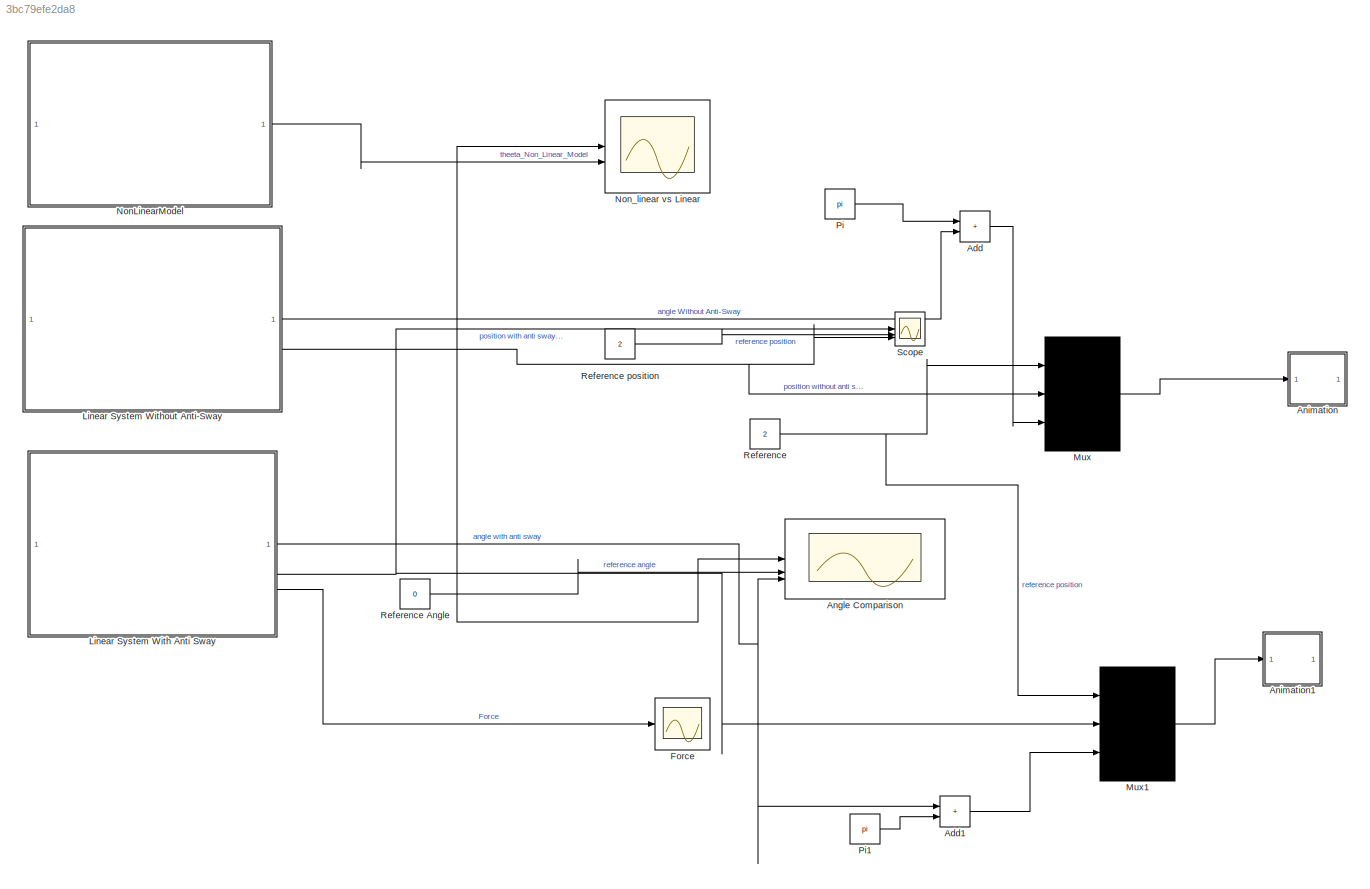
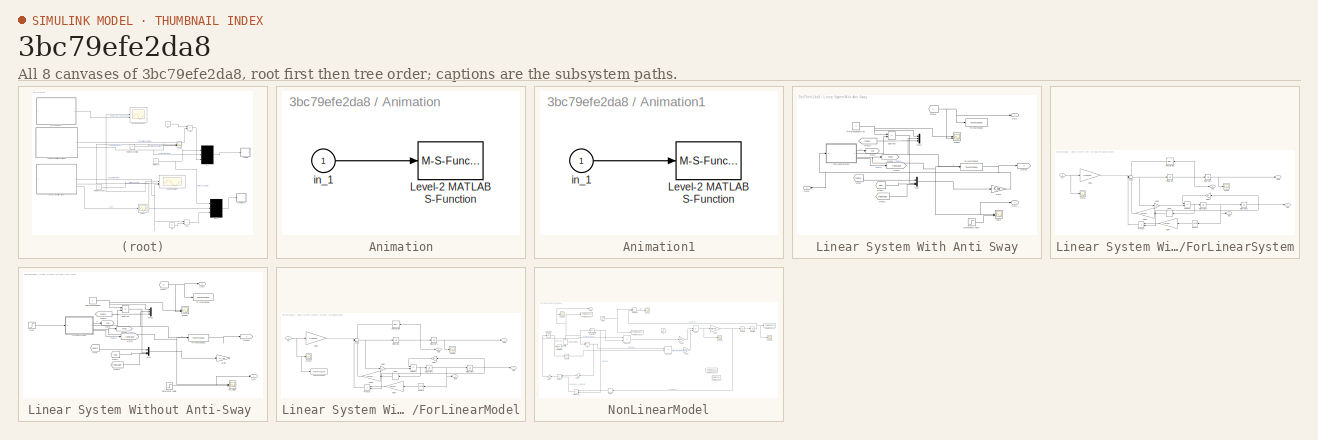
[diagram: thumbnail index - all 8 canvases of the model, root first then tree order]
MODEL slx_3bc79efe2da8
KIND model
CONFIG AbsTol = auto
CONFIG EnableMultiTasking = off
CONFIG FixedStep = auto
CONFIG MaxStep = auto
CONFIG MinStep = auto
CONFIG RelTol = 1e-3
CONFIG SampleTimeConstraint = Unconstrained
CONFIG SolverName = VariableStepAuto
CONFIG StartTime = 0.0
CONFIG StopTime = 30
BLOCK [Sum] Add
  IconShape = rectangular
BLOCK [Sum] Add1
  IconShape = rectangular
BLOCK [Scope] Angle Comparison
  Floating = off
  NumInputPorts = 3
  ScopeSpecificationString = Simulink.scopes.TimeScopeBlockCfg('CurrentConfiguration', extmgr.ConfigurationSet(extmgr.Configuration('Core','General UI',true),extmgr.Configuration('Core','Source UI',true),extmgr.Configuration('Sources','WiredSimulink',true,'DataLoggingVariableName','ScopeData9'),extmgr.Configuration('Visuals','Time Domain',true,'SerializedDisplays',{struct('MinYLimReal','-0.06838','MaxYLimReal','0.04109','YLab...<+1539ch>
BLOCK [SubSystem] Animation
  Commented = on
BLOCK [M-S-Function] Animation/Level-2 MATLAB S-Function
  FunctionName = pendan
  Parameters = RefBlock
BLOCK [Inport] Animation/in_1
BLOCK [SubSystem] Animation1
BLOCK [M-S-Function] Animation1/Level-2 MATLAB S-Function
  FunctionName = pendan
  Parameters = RefBlock
BLOCK [Inport] Animation1/in_1
BLOCK [Scope] Force
  Floating = off
  NumInputPorts = 1
  ScopeSpecificationString = Simulink.scopes.TimeScopeBlockCfg('CurrentConfiguration', extmgr.ConfigurationSet(extmgr.Configuration('Core','General UI',true),extmgr.Configuration('Core','Source UI',true),extmgr.Configuration('Sources','WiredSimulink',true,'DataLoggingVariableName','ScopeData12'),extmgr.Configuration('Visuals','Time Domain',true,'SerializedDisplays',{struct('MinYLimReal','-66.12351','MaxYLimReal','136.37792','...<+1464ch>
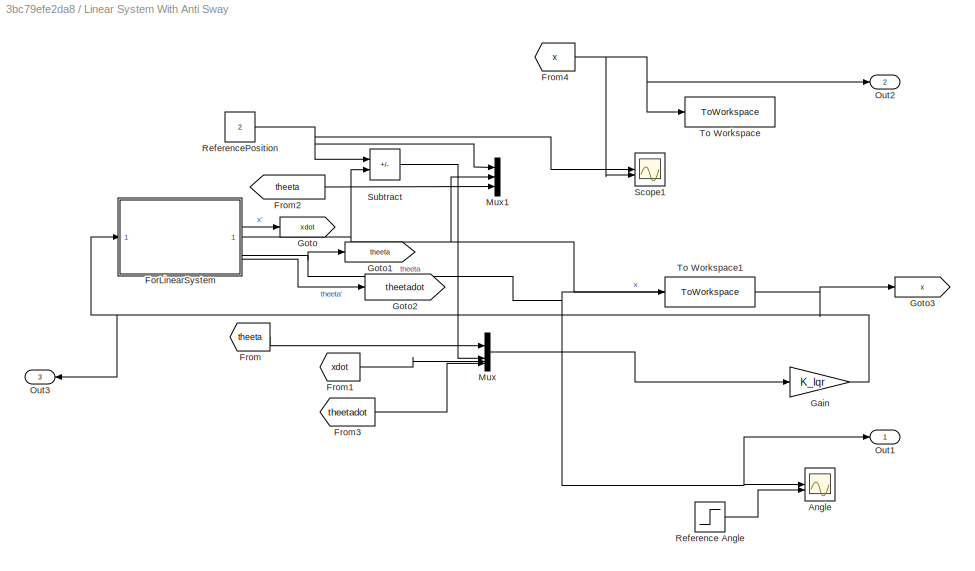
BLOCK [SubSystem] Linear System With Anti Sway
BLOCK [Scope] Linear System With Anti Sway/Angle
  Floating = off
  NumInputPorts = 2
  ScopeSpecificationString = Simulink.scopes.TimeScopeBlockCfg('CurrentConfiguration', extmgr.ConfigurationSet(extmgr.Configuration('Core','General UI',true),extmgr.Configuration('Core','Source UI',true),extmgr.Configuration('Sources','WiredSimulink',true,'DataLoggingVariableName','ScopeData3'),extmgr.Configuration('Visuals','Time Domain',true,'SerializedDisplays',{struct('MinYLimReal','-0.03869','MaxYLimReal','0.02916','YLab...<+1501ch>
BLOCK [SubSystem] Linear System With Anti Sway/ForLinearSystem
BLOCK [Delay] Linear System With Anti Sway/ForLinearSystem/Delay
  InputPortMap = u0
BLOCK [Gain] Linear System With Anti Sway/ForLinearSystem/Gain1
  Gain = 1/combinedmass
BLOCK [Gain] Linear System With Anti Sway/ForLinearSystem/Gain2
  Gain = 1/l
BLOCK [Gain] Linear System With Anti Sway/ForLinearSystem/Gain3
  Gain = g/l
BLOCK [Gain] Linear System With Anti Sway/ForLinearSystem/Gain4
  Gain = (m2*l)/(m1*m2)
BLOCK [Gain] Linear System With Anti Sway/ForLinearSystem/Gain5
  Gain = (m2*l)/(m1*m2)
BLOCK [Inport] Linear System With Anti Sway/ForLinearSystem/In1
BLOCK [Integrator] Linear System With Anti Sway/ForLinearSystem/Integrator
BLOCK [Integrator] Linear System With Anti Sway/ForLinearSystem/Integrator1
BLOCK [Integrator] Linear System With Anti Sway/ForLinearSystem/Integrator2
BLOCK [Integrator] Linear System With Anti Sway/ForLinearSystem/Integrator3
BLOCK [Outport] Linear System With Anti Sway/ForLinearSystem/Out1
BLOCK [Outport] Linear System With Anti Sway/ForLinearSystem/Out2
  Port = 2
BLOCK [Outport] Linear System With Anti Sway/ForLinearSystem/Out3
  Port = 4
BLOCK [Outport] Linear System With Anti Sway/ForLinearSystem/Out4
  Port = 3
BLOCK [Reference] Linear System With Anti Sway/ForLinearSystem/PID Controller  REF=slpidlib/PID Controller
  SourceBlock = slpidlib/PID Controller
  SourceType = PID 1dof
BLOCK [Product] Linear System With Anti Sway/ForLinearSystem/Product
BLOCK [Scope] Linear System With Anti Sway/ForLinearSystem/Scope
  Floating = off
  NumInputPorts = 1
  ScopeSpecificationString = Simulink.scopes.TimeScopeBlockCfg('CurrentConfiguration', extmgr.ConfigurationSet(extmgr.Configuration('Core','General UI',true),extmgr.Configuration('Core','Source UI',true),extmgr.Configuration('Sources','WiredSimulink',true,'DataLoggingVariableName','ScopeData2'),extmgr.Configuration('Visuals','Time Domain',true,'SerializedDisplays',{struct('MinYLimReal','-0.34362','MaxYLimReal','3.09255','YLab...<+1459ch>
BLOCK [Scope] Linear System With Anti Sway/ForLinearSystem/Scope1
  Floating = off
  NumInputPorts = 1
  ScopeSpecificationString = Simulink.scopes.TimeScopeBlockCfg('CurrentConfiguration', extmgr.ConfigurationSet(extmgr.Configuration('Core','General UI',true),extmgr.Configuration('Core','Source UI',true),extmgr.Configuration('Sources','WiredSimulink',true,'DataLoggingVariableName','ScopeData3'),extmgr.Configuration('Visuals','Time Domain',true,'SerializedDisplays',{struct('MinYLimReal','-66.12433','MaxYLimReal','136.37801','Y...<+1461ch>
BLOCK [Math] Linear System With Anti Sway/ForLinearSystem/Square
  Operator = square
BLOCK [Sum] Linear System With Anti Sway/ForLinearSystem/Subtract
  IconShape = rectangular
  Inputs = --
BLOCK [Sum] Linear System With Anti Sway/ForLinearSystem/Sum3
  Inputs = -++-
BLOCK [From] Linear System With Anti Sway/From
  GotoTag = theeta
BLOCK [From] Linear System With Anti Sway/From1
  GotoTag = xdot
BLOCK [From] Linear System With Anti Sway/From2
  GotoTag = theeta
BLOCK [From] Linear System With Anti Sway/From3
  GotoTag = theetadot
BLOCK [From] Linear System With Anti Sway/From4
  GotoTag = x
BLOCK [Gain] Linear System With Anti Sway/Gain
  Gain = K_lqr
  Multiplication = Matrix(K*u)
BLOCK [Goto] Linear System With Anti Sway/Goto
  GotoTag = xdot
BLOCK [Goto] Linear System With Anti Sway/Goto1
  GotoTag = theeta
BLOCK [Goto] Linear System With Anti Sway/Goto2
  GotoTag = theetadot
BLOCK [Goto] Linear System With Anti Sway/Goto3
  GotoTag = x
BLOCK [Mux] Linear System With Anti Sway/Mux
  DisplayOption = bar
BLOCK [Mux] Linear System With Anti Sway/Mux1
  DisplayOption = bar
  Inputs = 3
BLOCK [Outport] Linear System With Anti Sway/Out1
BLOCK [Outport] Linear System With Anti Sway/Out2
  Port = 2
BLOCK [Outport] Linear System With Anti Sway/Out3
  Port = 3
BLOCK [Step] Linear System With Anti Sway/Reference Angle
  After = 0
  SampleTime = 0
BLOCK [Constant] Linear System With Anti Sway/ReferencePosition
  Value = 2
BLOCK [Scope] Linear System With Anti Sway/Scope1
  Floating = off
  NumInputPorts = 2
  ScopeSpecificationString = Simulink.scopes.TimeScopeBlockCfg('CurrentConfiguration', extmgr.ConfigurationSet(extmgr.Configuration('Core','General UI',true),extmgr.Configuration('Core','Source UI',true),extmgr.Configuration('Sources','WiredSimulink',true,'DataLoggingVariableName','ScopeData4'),extmgr.Configuration('Visuals','Time Domain',true,'SerializedDisplays',{struct('MinYLimReal','-0.34343','MaxYLimReal','3.09084','YLab...<+1471ch>
BLOCK [Sum] Linear System With Anti Sway/Subtract
  IconShape = rectangular
  Inputs = +-
BLOCK [ToWorkspace] Linear System With Anti Sway/To Workspace
  FixptAsFi = on
  MaxDataPoints = inf
  SampleTime = -1
  SaveFormat = Timeseries
  VariableName = pos1
BLOCK [ToWorkspace] Linear System With Anti Sway/To Workspace1
  FixptAsFi = on
  MaxDataPoints = inf
  SampleTime = -1
  SaveFormat = Timeseries
  VariableName = angle1
BLOCK [SubSystem] Linear System Without Anti-Sway 
BLOCK [SubSystem] Linear System Without Anti-Sway /ForLinearModel
BLOCK [Delay] Linear System Without Anti-Sway /ForLinearModel/Delay
  InputPortMap = u0
BLOCK [Gain] Linear System Without Anti-Sway /ForLinearModel/Gain1
  Gain = 1/combinedmass
BLOCK [Gain] Linear System Without Anti-Sway /ForLinearModel/Gain2
  Gain = 1/l
BLOCK [Gain] Linear System Without Anti-Sway /ForLinearModel/Gain3
  Gain = g/l
BLOCK [Gain] Linear System Without Anti-Sway /ForLinearModel/Gain4
  Gain = (m2*l)/(m1*m2)
BLOCK [Gain] Linear System Without Anti-Sway /ForLinearModel/Gain5
  Gain = (m2*l)/(m1*m2)
BLOCK [Inport] Linear System Without Anti-Sway /ForLinearModel/In1
BLOCK [Integrator] Linear System Without Anti-Sway /ForLinearModel/Integrator
BLOCK [Integrator] Linear System Without Anti-Sway /ForLinearModel/Integrator1
BLOCK [Integrator] Linear System Without Anti-Sway /ForLinearModel/Integrator2
BLOCK [Integrator] Linear System Without Anti-Sway /ForLinearModel/Integrator3
BLOCK [Outport] Linear System Without Anti-Sway /ForLinearModel/Out1
BLOCK [Outport] Linear System Without Anti-Sway /ForLinearModel/Out2
  Port = 2
BLOCK [Outport] Linear System Without Anti-Sway /ForLinearModel/Out3
  Port = 4
BLOCK [Outport] Linear System Without Anti-Sway /ForLinearModel/Out4
  Port = 3
BLOCK [Reference] Linear System Without Anti-Sway /ForLinearModel/PID Controller  REF=slpidlib/PID Controller
  SourceBlock = slpidlib/PID Controller
  SourceType = PID 1dof
BLOCK [Product] Linear System Without Anti-Sway /ForLinearModel/Product
BLOCK [Scope] Linear System Without Anti-Sway /ForLinearModel/Scope
  Floating = off
  NumInputPorts = 1
  ScopeSpecificationString = Simulink.scopes.TimeScopeBlockCfg('CurrentConfiguration', extmgr.ConfigurationSet(extmgr.Configuration('Core','General UI',true),extmgr.Configuration('Core','Source UI',true),extmgr.Configuration('Sources','WiredSimulink',true,'DataLoggingVariableName','ScopeData2'),extmgr.Configuration('Visuals','Time Domain',true,'SerializedDisplays',{struct('MinYLimReal','-0.34362','MaxYLimReal','3.09255','YLab...<+1459ch>
BLOCK [Scope] Linear System Without Anti-Sway /ForLinearModel/Scope1
  Floating = off
  NumInputPorts = 1
  ScopeSpecificationString = Simulink.scopes.TimeScopeBlockCfg('CurrentConfiguration', extmgr.ConfigurationSet(extmgr.Configuration('Core','General UI',true),extmgr.Configuration('Core','Source UI',true),extmgr.Configuration('Sources','WiredSimulink',true,'DataLoggingVariableName','ScopeData3'),extmgr.Configuration('Visuals','Time Domain',true,'SerializedDisplays',{struct('MinYLimReal','90.00000','MaxYLimReal','110.00000','YL...<+1461ch>
BLOCK [Math] Linear System Without Anti-Sway /ForLinearModel/Square
  Operator = square
BLOCK [Sum] Linear System Without Anti-Sway /ForLinearModel/Subtract
  IconShape = rectangular
  Inputs = --
BLOCK [Sum] Linear System Without Anti-Sway /ForLinearModel/Sum3
  Inputs = -++-
BLOCK [ToWorkspace] Linear System Without Anti-Sway /ForLinearModel/To Workspace
  FixptAsFi = on
  MaxDataPoints = inf
  SampleTime = -1
  SaveFormat = Timeseries
  VariableName = F
BLOCK [From] Linear System Without Anti-Sway /From
  GotoTag = theeta
BLOCK [From] Linear System Without Anti-Sway /From1
  GotoTag = xdot
BLOCK [From] Linear System Without Anti-Sway /From2
  GotoTag = theeta
BLOCK [From] Linear System Without Anti-Sway /From3
  GotoTag = theetadot
BLOCK [From] Linear System Without Anti-Sway /From4
  GotoTag = x
BLOCK [Gain] Linear System Without Anti-Sway /Gain
  Gain = K_lqr
  Multiplication = Matrix(K*u)
BLOCK [Goto] Linear System Without Anti-Sway /Goto
  GotoTag = xdot
BLOCK [Goto] Linear System Without Anti-Sway /Goto1
  GotoTag = theeta
BLOCK [Goto] Linear System Without Anti-Sway /Goto2
  GotoTag = theetadot
BLOCK [Goto] Linear System Without Anti-Sway /Goto3
  GotoTag = x
BLOCK [Scope] Linear System Without Anti-Sway /Lin_Angle
  Floating = off
  NumInputPorts = 2
  ScopeSpecificationString = Simulink.scopes.TimeScopeBlockCfg('CurrentConfiguration', extmgr.ConfigurationSet(extmgr.Configuration('Core','General UI',true),extmgr.Configuration('Core','Source UI',true),extmgr.Configuration('Sources','WiredSimulink',true,'DataLoggingVariableName','ScopeData1'),extmgr.Configuration('Visuals','Time Domain',true,'SerializedDisplays',{struct('MinYLimReal','-0.0342','MaxYLimReal','0.02055','YLabe...<+1497ch>
BLOCK [Mux] Linear System Without Anti-Sway /Mux
  DisplayOption = bar
BLOCK [Mux] Linear System Without Anti-Sway /Mux1
  DisplayOption = bar
  Inputs = 3
BLOCK [Outport] Linear System Without Anti-Sway /Out1
BLOCK [Outport] Linear System Without Anti-Sway /Out2
  Port = 2
BLOCK [Step] Linear System Without Anti-Sway /Reference Angle
  After = 0
  SampleTime = 0
BLOCK [Constant] Linear System Without Anti-Sway /ReferencePosition
  Value = 2
BLOCK [Scope] Linear System Without Anti-Sway /Scope1
  Floating = off
  NumInputPorts = 2
  ScopeSpecificationString = Simulink.scopes.TimeScopeBlockCfg('CurrentConfiguration', extmgr.ConfigurationSet(extmgr.Configuration('Core','General UI',true),extmgr.Configuration('Core','Source UI',true),extmgr.Configuration('Sources','WiredSimulink',true,'DataLoggingVariableName','ScopeData2'),extmgr.Configuration('Visuals','Time Domain',true,'SerializedDisplays',{struct('MinYLimReal','-5.63562','MaxYLimReal','50.72057','YLa...<+1475ch>
BLOCK [Step] Linear System Without Anti-Sway /Step
  After = 200
  SampleTime = 0
  Time = 0
BLOCK [Sum] Linear System Without Anti-Sway /Subtract
  IconShape = rectangular
  Inputs = +-
BLOCK [ToWorkspace] Linear System Without Anti-Sway /To Workspace
  FixptAsFi = on
  MaxDataPoints = inf
  SampleTime = -1
  SaveFormat = Timeseries
  VariableName = pos
BLOCK [ToWorkspace] Linear System Without Anti-Sway /To Workspace1
  FixptAsFi = on
  MaxDataPoints = inf
  SampleTime = -1
  SaveFormat = Timeseries
  VariableName = angle
BLOCK [Mux] Mux
  DisplayOption = bar
  Inputs = 3
BLOCK [Mux] Mux1
  DisplayOption = bar
  Inputs = 3
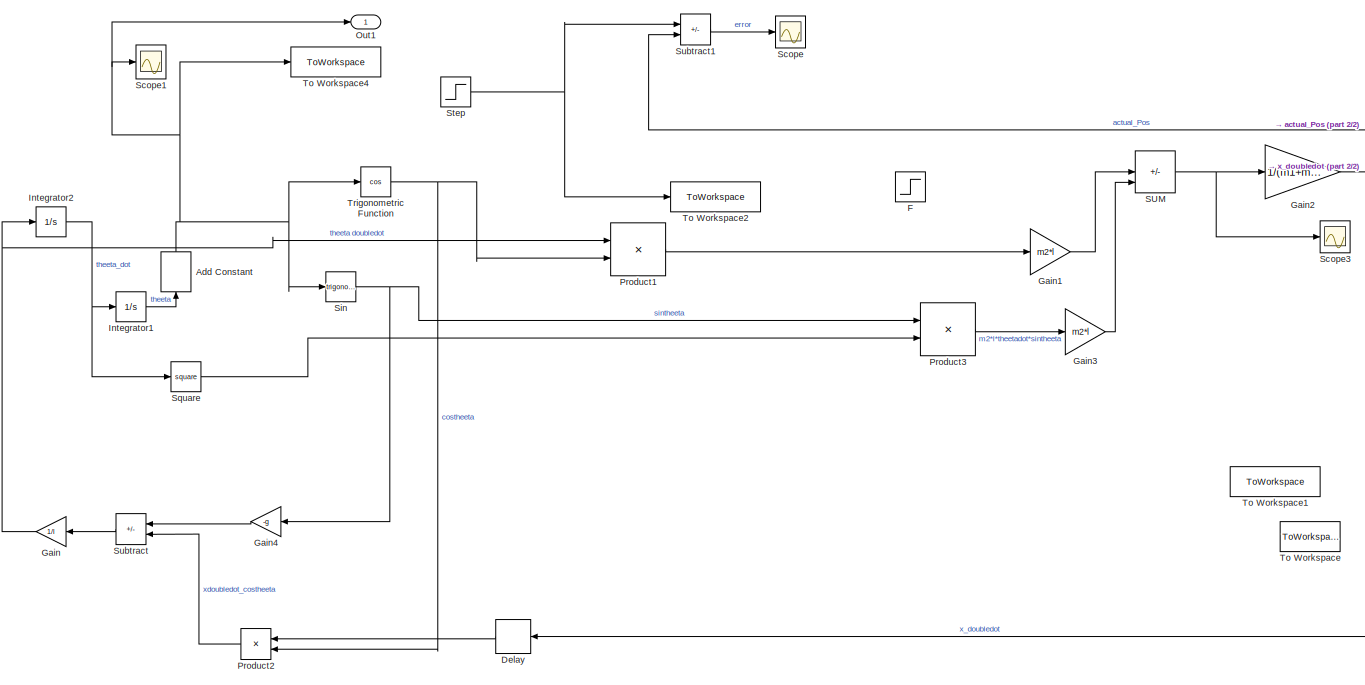
[diagram: NonLinearModel - part 1/2, most of the canvas]
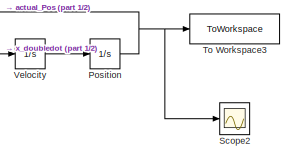
[diagram: NonLinearModel - part 2/2, top right region]
BLOCK [SubSystem] NonLinearModel
BLOCK [Bias] NonLinearModel/Add Constant
  NameLocation = right
  SaturateOnIntegerOverflow = off
BLOCK [Delay] NonLinearModel/Delay
  DelayLength = 1
  InputPortMap = u0
BLOCK [Step] NonLinearModel/F
  After = 200
  SampleTime = 0
  Time = 0
BLOCK [Gain] NonLinearModel/Gain
  Gain = 1/l
BLOCK [Gain] NonLinearModel/Gain1
  Gain = m2*l
BLOCK [Gain] NonLinearModel/Gain2
  Gain = 1/(m1+m2)
BLOCK [Gain] NonLinearModel/Gain3
  Gain = m2*l
BLOCK [Gain] NonLinearModel/Gain4
  Gain = -g
BLOCK [Integrator] NonLinearModel/Integrator1
BLOCK [Integrator] NonLinearModel/Integrator2
BLOCK [Outport] NonLinearModel/Out1
BLOCK [Integrator] NonLinearModel/Position
BLOCK [Product] NonLinearModel/Product1
BLOCK [Product] NonLinearModel/Product2
BLOCK [Product] NonLinearModel/Product3
BLOCK [Sum] NonLinearModel/SUM
  IconShape = rectangular
  Inputs = +-+
BLOCK [Scope] NonLinearModel/Scope
  Floating = off
  NumInputPorts = 1
  ScopeSpecificationString = Simulink.scopes.TimeScopeBlockCfg('CurrentConfiguration', extmgr.ConfigurationSet(extmgr.Configuration('Core','General UI',true),extmgr.Configuration('Core','Source UI',true),extmgr.Configuration('Sources','WiredSimulink',true,'DataLoggingVariableName','ScopeData5'),extmgr.Configuration('Visuals','Time Domain',true,'SerializedDisplays',{struct('MinYLimReal','-17.07595','MaxYLimReal','3.00844','YLa...<+1486ch>
BLOCK [Scope] NonLinearModel/Scope1
  Floating = off
  NumInputPorts = 1
  ScopeSpecificationString = Simulink.scopes.TimeScopeBlockCfg('CurrentConfiguration', extmgr.ConfigurationSet(extmgr.Configuration('Core','General UI',true),extmgr.Configuration('Core','Source UI',true),extmgr.Configuration('Sources','WiredSimulink',true,'DataLoggingVariableName','ScopeData6'),extmgr.Configuration('Visuals','Time Domain',true,'SerializedDisplays',{struct('MinYLimReal','-1.00000','MaxYLimReal','1.00000','YLab...<+1489ch>
BLOCK [Scope] NonLinearModel/Scope2
  Floating = off
  NumInputPorts = 1
  ScopeSpecificationString = Simulink.scopes.TimeScopeBlockCfg('CurrentConfiguration', extmgr.ConfigurationSet(extmgr.Configuration('Core','General UI',true),extmgr.Configuration('Core','Source UI',true),extmgr.Configuration('Sources','WiredSimulink',true,'DataLoggingVariableName','ScopeData7'),extmgr.Configuration('Visuals','Time Domain',true,'SerializedDisplays',{struct('MinYLimReal','-0.55688','MaxYLimReal','5.01192','YLab...<+1458ch>
BLOCK [Scope] NonLinearModel/Scope3
  Floating = off
  NumInputPorts = 1
  ScopeSpecificationString = Simulink.scopes.TimeScopeBlockCfg('CurrentConfiguration', extmgr.ConfigurationSet(extmgr.Configuration('Core','General UI',true),extmgr.Configuration('Core','Source UI',true),extmgr.Configuration('Sources','WiredSimulink',true,'DataLoggingVariableName','ScopeData8'),extmgr.Configuration('Visuals','Time Domain',true,'SerializedDisplays',{struct('MinYLimReal','-0.1525','MaxYLimReal','1.3725','YLabel...<+1474ch>
BLOCK [Trigonometry] NonLinearModel/Sin
BLOCK [Math] NonLinearModel/Square
  Operator = square
BLOCK [Step] NonLinearModel/Step
  After = 2
  SampleTime = 0
BLOCK [Sum] NonLinearModel/Subtract
  IconShape = rectangular
  Inputs = +-
BLOCK [Sum] NonLinearModel/Subtract1
  IconShape = rectangular
  Inputs = +-
BLOCK [ToWorkspace] NonLinearModel/To Workspace
  FixptAsFi = on
  MaxDataPoints = inf
  SampleTime = -1
  SaveFormat = Timeseries
  VariableName = position
BLOCK [ToWorkspace] NonLinearModel/To Workspace1
  FixptAsFi = on
  MaxDataPoints = inf
  SampleTime = -1
  SaveFormat = Timeseries
  VariableName = simout
BLOCK [ToWorkspace] NonLinearModel/To Workspace2
  FixptAsFi = on
  MaxDataPoints = inf
  SampleTime = -1
  SaveFormat = Timeseries
  VariableName = pos_ref
BLOCK [ToWorkspace] NonLinearModel/To Workspace3
  FixptAsFi = on
  MaxDataPoints = inf
  SampleTime = -1
  SaveFormat = Timeseries
  VariableName = pos2
BLOCK [ToWorkspace] NonLinearModel/To Workspace4
  FixptAsFi = on
  MaxDataPoints = inf
  SampleTime = -1
  SaveFormat = Timeseries
  VariableName = simout1
BLOCK [Trigonometry] NonLinearModel/Trigonometric Function
  Operator = cos
BLOCK [Integrator] NonLinearModel/Velocity
BLOCK [Scope] Non_linear vs Linear
  Floating = off
  NumInputPorts = 2
  ScopeSpecificationString = Simulink.scopes.TimeScopeBlockCfg('CurrentConfiguration', extmgr.ConfigurationSet(extmgr.Configuration('Core','General UI',true),extmgr.Configuration('Core','Source UI',true),extmgr.Configuration('Sources','WiredSimulink',true,'DataLoggingVariableName','ScopeData11'),extmgr.Configuration('Visuals','Time Domain',true,'SerializedDisplays',{struct('MinYLimReal','-0.06838','MaxYLimReal','0.04109','YLa...<+1498ch>
BLOCK [Constant] Pi
  OutDataTypeStr = Inherit: Inherit via back propagation
  Value = pi
BLOCK [Constant] Pi1
  OutDataTypeStr = Inherit: Inherit via back propagation
  Value = pi
BLOCK [Constant] Reference
  Value = 2
BLOCK [Constant] Reference Angle
  Value = 0
BLOCK [Constant] Reference position 
  Value = 2
BLOCK [Scope] Scope
  Floating = off
  NumInputPorts = 3
  ScopeSpecificationString = Simulink.scopes.TimeScopeBlockCfg('CurrentConfiguration', extmgr.ConfigurationSet(extmgr.Configuration('Core','General UI',true),extmgr.Configuration('Core','Source UI',true),extmgr.Configuration('Sources','WiredSimulink',true,'DataLoggingVariableName','ScopeData10'),extmgr.Configuration('Visuals','Time Domain',true,'SerializedDisplays',{struct('MinYLimReal','-11.27124','MaxYLimReal','101.44112','...<+1577ch>
LINE Add1:1 -> Mux1:3
LINE Add:1 -> Mux:3
LINE Animation/in_1:1 -> Animation/Level-2 MATLAB S-Function:1
LINE Animation1/in_1:1 -> Animation1/Level-2 MATLAB S-Function:1
LINE Linear System With Anti Sway/ForLinearSystem/Delay:1 -> Linear System With Anti Sway/ForLinearSystem/Gain5:1
LINE Linear System With Anti Sway/ForLinearSystem/Gain1:1 -> Linear System With Anti Sway/ForLinearSystem/Sum3:2
LINE Linear System With Anti Sway/ForLinearSystem/Gain2:1 -> Linear System With Anti Sway/ForLinearSystem/Subtract:2
LINE Linear System With Anti Sway/ForLinearSystem/Gain3:1 -> Linear System With Anti Sway/ForLinearSystem/Subtract:1
LINE Linear System With Anti Sway/ForLinearSystem/Gain4:1 -> Linear System With Anti Sway/ForLinearSystem/Product:1
LINE Linear System With Anti Sway/ForLinearSystem/Gain5:1 -> Linear System With Anti Sway/ForLinearSystem/Sum3:4
NET Linear System With Anti Sway/ForLinearSystem/In1:1 -> Linear System With Anti Sway/ForLinearSystem/Gain1:1, Linear System With Anti Sway/ForLinearSystem/Scope1:1
NET Linear System With Anti Sway/ForLinearSystem/Integrator1:1 -> Linear System With Anti Sway/ForLinearSystem/Out1:1, Linear System With Anti Sway/ForLinearSystem/Scope:1
NET Linear System With Anti Sway/ForLinearSystem/Integrator2:1 -> Linear System With Anti Sway/ForLinearSystem/Integrator3:1, Linear System With Anti Sway/ForLinearSystem/Out3:1, Linear System With Anti Sway/ForLinearSystem/Square:1
NET Linear System With Anti Sway/ForLinearSystem/Integrator3:1 -> Linear System With Anti Sway/ForLinearSystem/Gain3:1, Linear System With Anti Sway/ForLinearSystem/Out4:1, Linear System With Anti Sway/ForLinearSystem/Product:2
NET Linear System With Anti Sway/ForLinearSystem/Integrator:1 -> Linear System With Anti Sway/ForLinearSystem/Integrator1:1, Linear System With Anti Sway/ForLinearSystem/Out2:1, Linear System With Anti Sway/ForLinearSystem/PID Controller:1
LINE Linear System With Anti Sway/ForLinearSystem/PID Controller:1 -> Linear System With Anti Sway/ForLinearSystem/Sum3:1
LINE Linear System With Anti Sway/ForLinearSystem/Product:1 -> Linear System With Anti Sway/ForLinearSystem/Sum3:3
LINE Linear System With Anti Sway/ForLinearSystem/Square:1 -> Linear System With Anti Sway/ForLinearSystem/Gain4:1
NET Linear System With Anti Sway/ForLinearSystem/Subtract:1 -> Linear System With Anti Sway/ForLinearSystem/Delay:1, Linear System With Anti Sway/ForLinearSystem/Integrator2:1
NET Linear System With Anti Sway/ForLinearSystem/Sum3:1 -> Linear System With Anti Sway/ForLinearSystem/Gain2:1, Linear System With Anti Sway/ForLinearSystem/Integrator:1
NET Linear System With Anti Sway/ForLinearSystem:1 -> Linear System With Anti Sway/Goto3:1, Linear System With Anti Sway/Mux1:2, Linear System With Anti Sway/Subtract:2
LINE Linear System With Anti Sway/ForLinearSystem:2 -> Linear System With Anti Sway/Goto:1
NET Linear System With Anti Sway/ForLinearSystem:3 -> Linear System With Anti Sway/Angle:1, Linear System With Anti Sway/Goto1:1, Linear System With Anti Sway/Out1:1, Linear System With Anti Sway/To Workspace1:1
LINE Linear System With Anti Sway/ForLinearSystem:4 -> Linear System With Anti Sway/Goto2:1
LINE Linear System With Anti Sway/From1:1 -> Linear System With Anti Sway/Mux:3
LINE Linear System With Anti Sway/From2:1 -> Linear System With Anti Sway/Mux1:3
LINE Linear System With Anti Sway/From3:1 -> Linear System With Anti Sway/Mux:4
NET Linear System With Anti Sway/From4:1 -> Linear System With Anti Sway/Out2:1, Linear System With Anti Sway/Scope1:2, Linear System With Anti Sway/To Workspace:1
LINE Linear System With Anti Sway/From:1 -> Linear System With Anti Sway/Mux:1
NET Linear System With Anti Sway/Gain:1 -> Linear System With Anti Sway/ForLinearSystem:1, Linear System With Anti Sway/Out3:1
LINE Linear System With Anti Sway/Mux:1 -> Linear System With Anti Sway/Gain:1
LINE Linear System With Anti Sway/Reference Angle:1 -> Linear System With Anti Sway/Angle:2
NET Linear System With Anti Sway/ReferencePosition:1 -> Linear System With Anti Sway/Mux1:1, Linear System With Anti Sway/Scope1:1, Linear System With Anti Sway/Subtract:1
LINE Linear System With Anti Sway/Subtract:1 -> Linear System With Anti Sway/Mux:2
NET Linear System With Anti Sway:1 -> Add1:1, Angle Comparison:3
NET Linear System With Anti Sway:2 -> Mux1:2, Scope:1
LINE Linear System With Anti Sway:3 -> Force:1
LINE Linear System Without Anti-Sway /ForLinearModel/Delay:1 -> Linear System Without Anti-Sway /ForLinearModel/Gain5:1
LINE Linear System Without Anti-Sway /ForLinearModel/Gain1:1 -> Linear System Without Anti-Sway /ForLinearModel/Sum3:2
LINE Linear System Without Anti-Sway /ForLinearModel/Gain2:1 -> Linear System Without Anti-Sway /ForLinearModel/Subtract:2
LINE Linear System Without Anti-Sway /ForLinearModel/Gain3:1 -> Linear System Without Anti-Sway /ForLinearModel/Subtract:1
LINE Linear System Without Anti-Sway /ForLinearModel/Gain4:1 -> Linear System Without Anti-Sway /ForLinearModel/Product:1
LINE Linear System Without Anti-Sway /ForLinearModel/Gain5:1 -> Linear System Without Anti-Sway /ForLinearModel/Sum3:4
NET Linear System Without Anti-Sway /ForLinearModel/In1:1 -> Linear System Without Anti-Sway /ForLinearModel/Gain1:1, Linear System Without Anti-Sway /ForLinearModel/Scope1:1, Linear System Without Anti-Sway /ForLinearModel/To Workspace:1
NET Linear System Without Anti-Sway /ForLinearModel/Integrator1:1 -> Linear System Without Anti-Sway /ForLinearModel/Out1:1, Linear System Without Anti-Sway /ForLinearModel/Scope:1
NET Linear System Without Anti-Sway /ForLinearModel/Integrator2:1 -> Linear System Without Anti-Sway /ForLinearModel/Integrator3:1, Linear System Without Anti-Sway /ForLinearModel/Out3:1, Linear System Without Anti-Sway /ForLinearModel/Square:1
NET Linear System Without Anti-Sway /ForLinearModel/Integrator3:1 -> Linear System Without Anti-Sway /ForLinearModel/Gain3:1, Linear System Without Anti-Sway /ForLinearModel/Out4:1, Linear System Without Anti-Sway /ForLinearModel/Product:2
NET Linear System Without Anti-Sway /ForLinearModel/Integrator:1 -> Linear System Without Anti-Sway /ForLinearModel/Integrator1:1, Linear System Without Anti-Sway /ForLinearModel/Out2:1, Linear System Without Anti-Sway /ForLinearModel/PID Controller:1
LINE Linear System Without Anti-Sway /ForLinearModel/PID Controller:1 -> Linear System Without Anti-Sway /ForLinearModel/Sum3:1
LINE Linear System Without Anti-Sway /ForLinearModel/Product:1 -> Linear System Without Anti-Sway /ForLinearModel/Sum3:3
LINE Linear System Without Anti-Sway /ForLinearModel/Square:1 -> Linear System Without Anti-Sway /ForLinearModel/Gain4:1
NET Linear System Without Anti-Sway /ForLinearModel/Subtract:1 -> Linear System Without Anti-Sway /ForLinearModel/Delay:1, Linear System Without Anti-Sway /ForLinearModel/Integrator2:1
NET Linear System Without Anti-Sway /ForLinearModel/Sum3:1 -> Linear System Without Anti-Sway /ForLinearModel/Gain2:1, Linear System Without Anti-Sway /ForLinearModel/Integrator:1
NET Linear System Without Anti-Sway /ForLinearModel:1 -> Linear System Without Anti-Sway /Goto3:1, Linear System Without Anti-Sway /Mux1:2, Linear System Without Anti-Sway /Subtract:2
LINE Linear System Without Anti-Sway /ForLinearModel:2 -> Linear System Without Anti-Sway /Goto:1
NET Linear System Without Anti-Sway /ForLinearModel:3 -> Linear System Without Anti-Sway /Goto1:1, Linear System Without Anti-Sway /Lin_Angle:1, Linear System Without Anti-Sway /Out1:1, Linear System Without Anti-Sway /To Workspace1:1
LINE Linear System Without Anti-Sway /ForLinearModel:4 -> Linear System Without Anti-Sway /Goto2:1
LINE Linear System Without Anti-Sway /From1:1 -> Linear System Without Anti-Sway /Mux:3
LINE Linear System Without Anti-Sway /From2:1 -> Linear System Without Anti-Sway /Mux1:3
LINE Linear System Without Anti-Sway /From3:1 -> Linear System Without Anti-Sway /Mux:4
NET Linear System Without Anti-Sway /From4:1 -> Linear System Without Anti-Sway /Out2:1, Linear System Without Anti-Sway /Scope1:2, Linear System Without Anti-Sway /To Workspace:1
LINE Linear System Without Anti-Sway /From:1 -> Linear System Without Anti-Sway /Mux:1
LINE Linear System Without Anti-Sway /Mux:1 -> Linear System Without Anti-Sway /Gain:1
LINE Linear System Without Anti-Sway /Reference Angle:1 -> Linear System Without Anti-Sway /Lin_Angle:2
NET Linear System Without Anti-Sway /ReferencePosition:1 -> Linear System Without Anti-Sway /Mux1:1, Linear System Without Anti-Sway /Scope1:1, Linear System Without Anti-Sway /Subtract:1
LINE Linear System Without Anti-Sway /Step:1 -> Linear System Without Anti-Sway /ForLinearModel:1
LINE Linear System Without Anti-Sway /Subtract:1 -> Linear System Without Anti-Sway /Mux:2
NET Linear System Without Anti-Sway :1 -> Add:2, Angle Comparison:1, Non_linear vs Linear:1
NET Linear System Without Anti-Sway :2 -> Mux:2, Scope:3
LINE Mux1:1 -> Animation1:1
LINE Mux:1 -> Animation:1
NET NonLinearModel/Add Constant:1 -> NonLinearModel/Out1:1, NonLinearModel/Scope1:1, NonLinearModel/Sin:1, NonLinearModel/To Workspace4:1, NonLinearModel/Trigonometric Function:1
LINE NonLinearModel/Delay:1 -> NonLinearModel/Product2:1
LINE NonLinearModel/Gain1:1 -> NonLinearModel/SUM:2
NET NonLinearModel/Gain2:1 -> NonLinearModel/Delay:1, NonLinearModel/Velocity:1
LINE NonLinearModel/Gain3:1 -> NonLinearModel/SUM:3
LINE NonLinearModel/Gain4:1 -> NonLinearModel/Subtract:1
NET NonLinearModel/Gain:1 -> NonLinearModel/Integrator2:1, NonLinearModel/Product1:1
LINE NonLinearModel/Integrator1:1 -> NonLinearModel/Add Constant:1
NET NonLinearModel/Integrator2:1 -> NonLinearModel/Integrator1:1, NonLinearModel/Square:1
NET NonLinearModel/Position:1 -> NonLinearModel/Scope2:1, NonLinearModel/Subtract1:2, NonLinearModel/To Workspace3:1
LINE NonLinearModel/Product1:1 -> NonLinearModel/Gain1:1
LINE NonLinearModel/Product2:1 -> NonLinearModel/Subtract:2
LINE NonLinearModel/Product3:1 -> NonLinearModel/Gain3:1
NET NonLinearModel/SUM:1 -> NonLinearModel/Gain2:1, NonLinearModel/Scope3:1
NET NonLinearModel/Sin:1 -> NonLinearModel/Gain4:1, NonLinearModel/Product3:1
LINE NonLinearModel/Square:1 -> NonLinearModel/Product3:2
NET NonLinearModel/Step:1 -> NonLinearModel/Subtract1:1, NonLinearModel/To Workspace2:1
LINE NonLinearModel/Subtract1:1 -> NonLinearModel/Scope:1
LINE NonLinearModel/Subtract:1 -> NonLinearModel/Gain:1
NET NonLinearModel/Trigonometric Function:1 -> NonLinearModel/Product1:2, NonLinearModel/Product2:2
LINE NonLinearModel/Velocity:1 -> NonLinearModel/Position:1
LINE NonLinearModel:1 -> Non_linear vs Linear:2
LINE Pi1:1 -> Add1:2
LINE Pi:1 -> Add:1
LINE Reference Angle:1 -> Angle Comparison:2
LINE Reference position :1 -> Scope:2
NET Reference:1 -> Mux1:1, Mux:1
note: NET lines group one-source signal fan-out (src -> all destinations, sorted); 1:1 wires keep LINE
